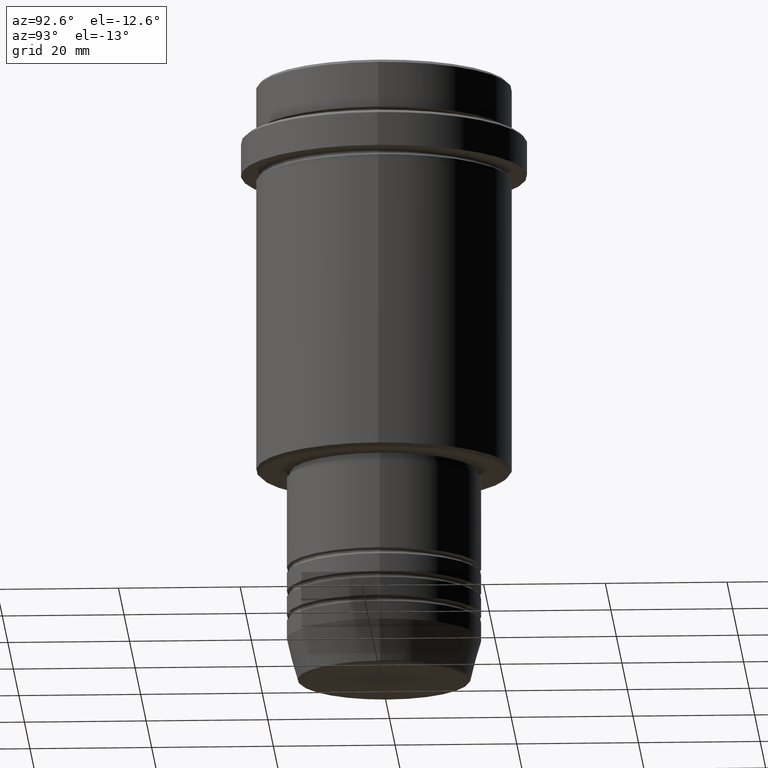
[diagram: clean part render]
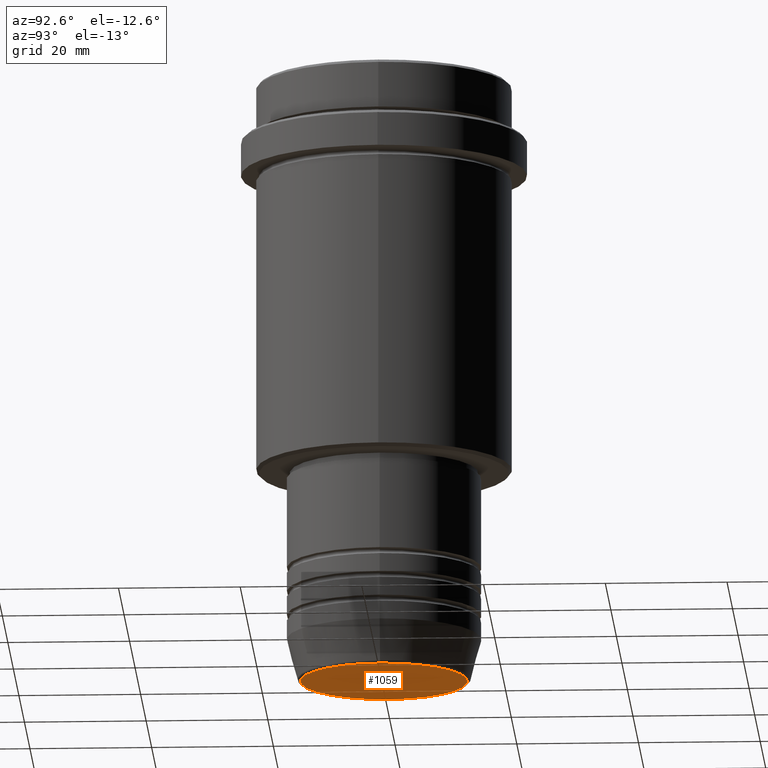
[diagram: same view with one face highlighted and labeled with its STEP entity id]
A machine part, auxiliary view. The second image highlights one B-rep face of the part: STEP entity #1059.
In plain terms, the highlighted planar face has unit normal (0, -0, 1).
Its self-contained STEP definition (entity closure, byte-faithful):
#21 = CIRCLE ( 'NONE', #820, 13.74069215899265473 ) ;
#59 = DIRECTION ( 'NONE',  ( 0.000000000000000000, -0.000000000000000000, 1.000000000000000000 ) ) ;
#113 = CIRCLE ( 'NONE', #198, 13.74069215899265473 ) ;
#125 = DIRECTION ( 'NONE',  ( 1.000000000000000000, 0.000000000000000000, 0.000000000000000000 ) ) ;
#173 = AXIS2_PLACEMENT_3D ( 'NONE', #811, #59, #247 ) ;
#198 = AXIS2_PLACEMENT_3D ( 'NONE', #297, #207, #619 ) ;
#207 = DIRECTION ( 'NONE',  ( 0.000000000000000000, 0.000000000000000000, -1.000000000000000000 ) ) ;
#224 = DIRECTION ( 'NONE',  ( 0.000000000000000000, 0.000000000000000000, -1.000000000000000000 ) ) ;
#247 = DIRECTION ( 'NONE',  ( 1.000000000000000000, 0.000000000000000000, 0.000000000000000000 ) ) ;
#252 = CARTESIAN_POINT ( 'NONE',  ( -13.74069215899265473, 1.712322416342415591E-15, -100.0000000000000000 ) ) ;
#297 = CARTESIAN_POINT ( 'NONE',  ( 0.000000000000000000, 0.000000000000000000, -100.0000000000000000 ) ) ;
#597 = ORIENTED_EDGE ( 'NONE', *, *, #896, .T. ) ;
#619 = DIRECTION ( 'NONE',  ( 1.000000000000000000, 0.000000000000000000, 0.000000000000000000 ) ) ;
#745 = EDGE_LOOP ( 'NONE', ( #873, #597 ) ) ;
#811 = CARTESIAN_POINT ( 'NONE',  ( 0.000000000000000000, 0.000000000000000000, -100.0000000000000000 ) ) ;
#820 = AXIS2_PLACEMENT_3D ( 'NONE', #996, #224, #125 ) ;
#873 = ORIENTED_EDGE ( 'NONE', *, *, #1221, .T. ) ;
#896 = EDGE_CURVE ( 'NONE', #1088, #1010, #21, .T. ) ;
#932 = FACE_OUTER_BOUND ( 'NONE', #745, .T. ) ;
#996 = CARTESIAN_POINT ( 'NONE',  ( 0.000000000000000000, 0.000000000000000000, -100.0000000000000000 ) ) ;
#1010 = VERTEX_POINT ( 'NONE', #1113 ) ;
#1059 = ADVANCED_FACE ( 'NONE', ( #932 ), #1154, .F. ) ;
#1088 = VERTEX_POINT ( 'NONE', #252 ) ;
#1113 = CARTESIAN_POINT ( 'NONE',  ( 13.74069215899265473, 0.000000000000000000, -100.0000000000000000 ) ) ;
#1154 = PLANE ( 'NONE',  #173 ) ;
#1221 = EDGE_CURVE ( 'NONE', #1010, #1088, #113, .T. ) ;